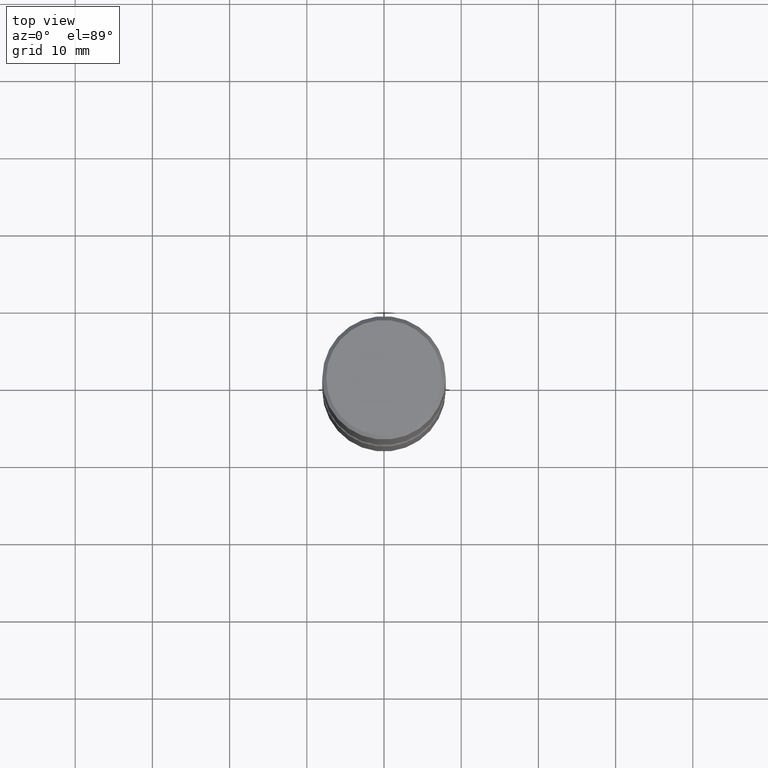
[diagram: clean part render]
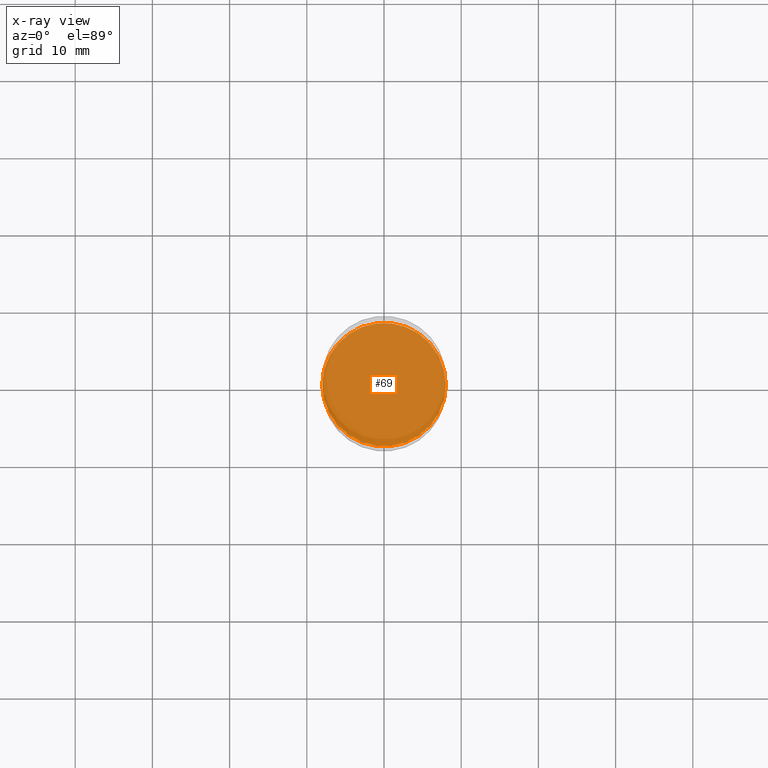
[diagram: x-ray — body ghosted, one internal face saturated and labeled with its STEP entity id]
A machine part, top view, then the same camera in x-ray: the body is ghosted and one INTERNAL B-rep face — a face not visible from any outside direction — is saturated and labeled: STEP entity #69.
In plain terms, the highlighted planar face has unit normal (0, -0, -1).
Its self-contained STEP definition (entity closure, byte-faithful):
#11 = EDGE_LOOP ( 'NONE', ( #354, #361 ) ) ;
#51 = DIRECTION ( 'NONE',  ( -2.445468806185136597E-29, 3.491481338843145583E-15, 1.000000000000000000 ) ) ;
#69 = ADVANCED_FACE ( 'NONE', ( #160 ), #114, .F. ) ;
#85 = CARTESIAN_POINT ( 'NONE',  ( -0.3149500000000002298, -7.453101257816594857E-15, -2.047199999999999243 ) ) ;
#114 = PLANE ( 'NONE',  #317 ) ;
#152 = CIRCLE ( 'NONE', #206, 0.3149500000000002298 ) ;
#155 = EDGE_CURVE ( 'NONE', #483, #508, #152, .T. ) ;
#160 = FACE_OUTER_BOUND ( 'NONE', #11, .T. ) ;
#175 = CARTESIAN_POINT ( 'NONE',  ( 0.3149500000000002298, -9.347044692216974917E-15, -2.047199999999999243 ) ) ;
#206 = AXIS2_PLACEMENT_3D ( 'NONE', #207, #379, #500 ) ;
#207 = CARTESIAN_POINT ( 'NONE',  ( 5.006363740022209438E-29, -7.147760596879685046E-15, -2.047199999999999243 ) ) ;
#209 = DIRECTION ( 'NONE',  ( -1.000000000000000000, 6.982962677686265922E-15, -4.876176775795935793E-29 ) ) ;
#243 = CARTESIAN_POINT ( 'NONE',  ( 1.244624770094737813E-28, 3.506576687062802322E-15, -2.047200000000000131 ) ) ;
#290 = CARTESIAN_POINT ( 'NONE',  ( 5.006363740022209438E-29, -7.147760596879685046E-15, -2.047199999999999243 ) ) ;
#298 = CIRCLE ( 'NONE', #305, 0.3149500000000002298 ) ;
#305 = AXIS2_PLACEMENT_3D ( 'NONE', #290, #51, #458 ) ;
#317 = AXIS2_PLACEMENT_3D ( 'NONE', #243, #413, #209 ) ;
#341 = EDGE_CURVE ( 'NONE', #508, #483, #298, .T. ) ;
#354 = ORIENTED_EDGE ( 'NONE', *, *, #341, .T. ) ;
#361 = ORIENTED_EDGE ( 'NONE', *, *, #155, .T. ) ;
#379 = DIRECTION ( 'NONE',  ( -2.445468806185136597E-29, 3.491481338843145583E-15, 1.000000000000000000 ) ) ;
#413 = DIRECTION ( 'NONE',  ( 2.438088387897960049E-29, -3.491481338843145188E-15, -1.000000000000000000 ) ) ;
#458 = DIRECTION ( 'NONE',  ( 1.000000000000000000, -6.982962677686264344E-15, 0.000000000000000000 ) ) ;
#483 = VERTEX_POINT ( 'NONE', #85 ) ;
#500 = DIRECTION ( 'NONE',  ( 1.000000000000000000, -6.982962677686264344E-15, 0.000000000000000000 ) ) ;
#508 = VERTEX_POINT ( 'NONE', #175 ) ;